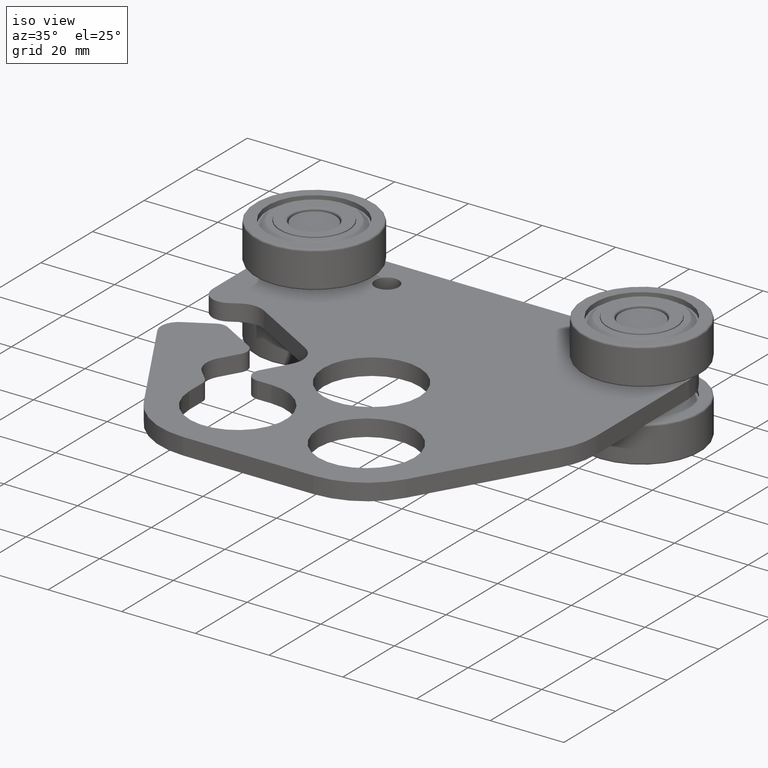
[diagram: clean part render]
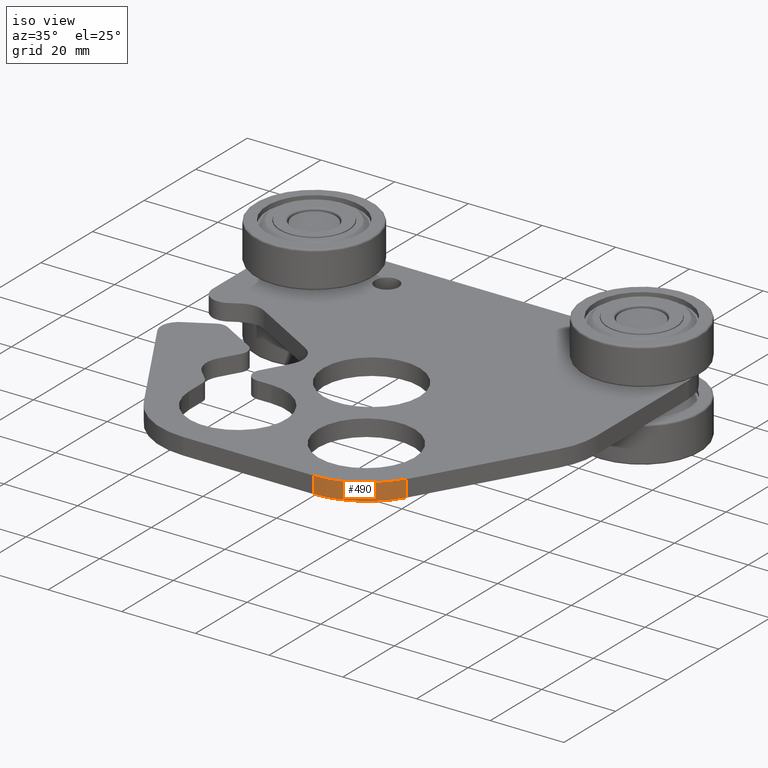
[diagram: same view with one face highlighted and labeled with its STEP entity id]
A machine part, iso view. The second image highlights one B-rep face of the part: STEP entity #490.
In plain terms, the highlighted cylindrical surface (partial cylindrical patch) has radius 20.6248 mm, axis along (0, 0, 1).
Its self-contained STEP definition (entity closure, byte-faithful):
#153=CARTESIAN_POINT('',(1.401429536415542,-1.594131689031264,0.0));
#154=VERTEX_POINT('',#153);
#161=CARTESIAN_POINT('',(0.698292955682743,-1.999999999999999,0.0));
#162=VERTEX_POINT('',#161);
#163=CARTESIAN_POINT('',(0.698292955682742,-1.187999999999999,0.0));
#164=DIRECTION('',(0.0,0.0,1.0));
#165=DIRECTION('',(0.499918904118492,-0.866072219451106,0.0));
#166=AXIS2_PLACEMENT_3D('',#163,#164,#165);
#167=CIRCLE('',#166,0.812);
#168=EDGE_CURVE('',#162,#154,#167,.T.);
#459=CARTESIAN_POINT('',(0.698292955682742,-1.187999999999999,0.0));
#460=DIRECTION('',(0.0,0.0,1.0));
#461=DIRECTION('',(0.499918904118492,-0.866072219451106,0.0));
#462=AXIS2_PLACEMENT_3D('',#459,#460,#461);
#463=CYLINDRICAL_SURFACE('',#462,0.812);
#464=CARTESIAN_POINT('',(1.401429536415542,-1.594131689031264,0.179));
#465=VERTEX_POINT('',#464);
#466=CARTESIAN_POINT('',(0.698292955682743,-1.999999999999999,0.179));
#467=VERTEX_POINT('',#466);
#468=CARTESIAN_POINT('',(0.698292955682742,-1.187999999999999,0.179));
#469=DIRECTION('',(0.0,0.0,-1.0));
#470=DIRECTION('',(0.499918904118492,-0.866072219451106,0.0));
#471=AXIS2_PLACEMENT_3D('',#468,#469,#470);
#472=CIRCLE('',#471,0.812);
#473=EDGE_CURVE('',#465,#467,#472,.T.);
#474=ORIENTED_EDGE('',*,*,#473,.T.);
#475=CARTESIAN_POINT('',(0.698292955682743,-1.999999999999999,0.179));
#476=DIRECTION('',(0.0,0.0,-1.0));
#477=VECTOR('',#476,0.179);
#478=LINE('',#475,#477);
#479=EDGE_CURVE('',#467,#162,#478,.T.);
#480=ORIENTED_EDGE('',*,*,#479,.T.);
#481=ORIENTED_EDGE('',*,*,#168,.T.);
#482=CARTESIAN_POINT('',(1.401429536415542,-1.594131689031264,0.0));
#483=DIRECTION('',(0.0,0.0,1.0));
#484=VECTOR('',#483,0.179);
#485=LINE('',#482,#484);
#486=EDGE_CURVE('',#154,#465,#485,.T.);
#487=ORIENTED_EDGE('',*,*,#486,.T.);
#488=EDGE_LOOP('',(#474,#480,#481,#487));
#489=FACE_OUTER_BOUND('',#488,.T.);
#490=ADVANCED_FACE('',(#489),#463,.T.);